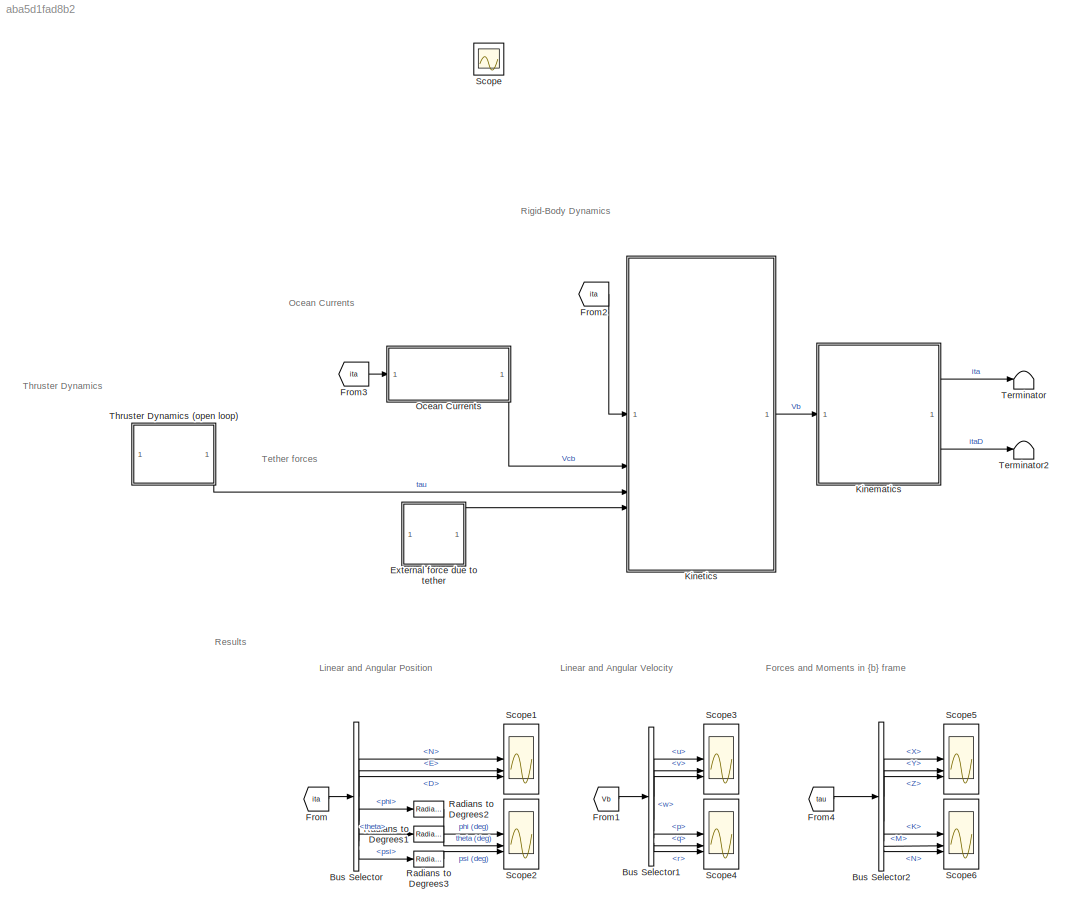
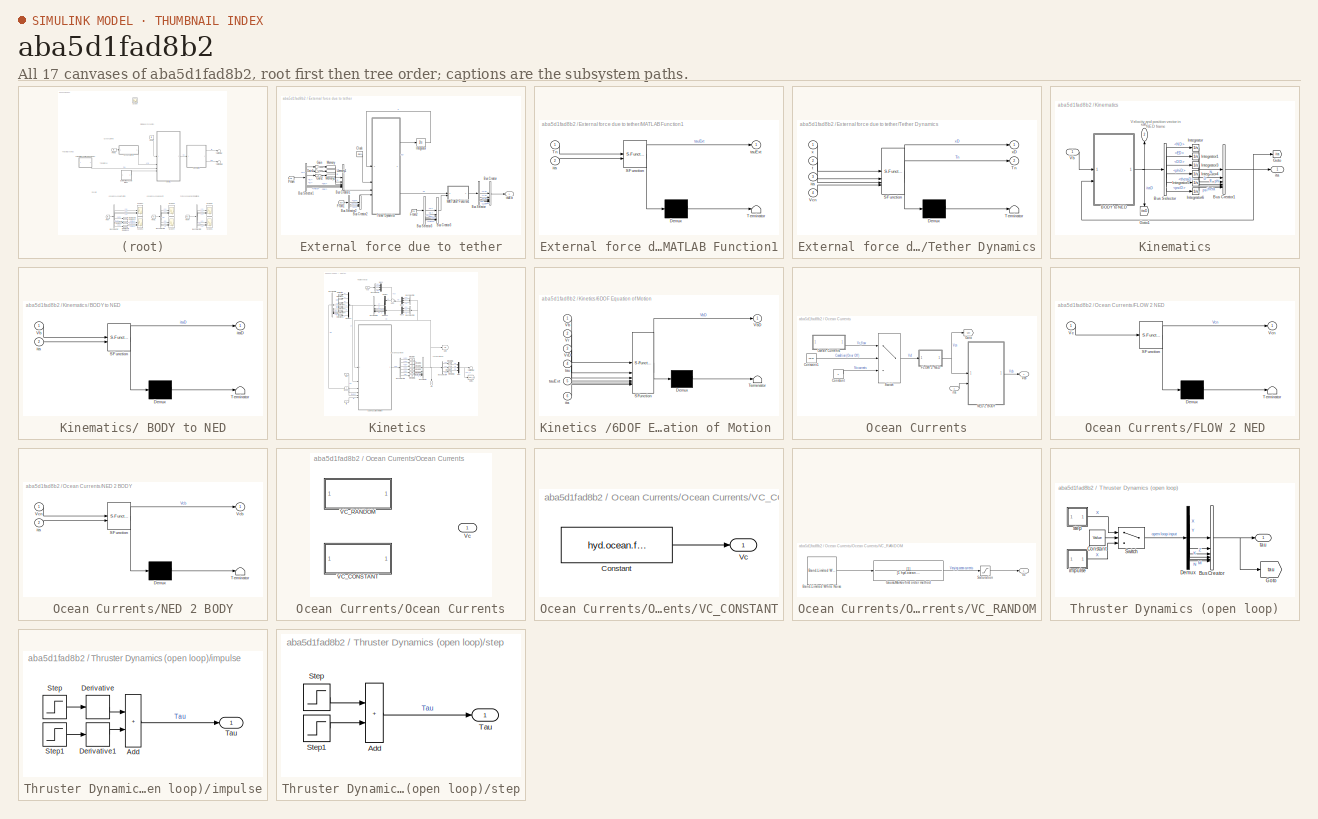
[diagram: thumbnail index - all 17 canvases of the model, root first then tree order]
MODEL slx_aba5d1fad8b2
KIND model
CONFIG AbsTol = auto
CONFIG EnableMultiTasking = off
CONFIG FixedStep = 0.01
CONFIG MaxStep = 0.01
CONFIG MinStep = 0.0001
CONFIG RelTol = 1e-3
CONFIG SampleTimeConstraint = Unconstrained
CONFIG SolverName = ode15s
CONFIG StartTime = 0.0
CONFIG StopTime = Sim.ts
BLOCK [BusSelector] Bus Selector
  OutputSignals = N,E,D,phi,theta,psi
BLOCK [BusSelector] Bus Selector1
  OutputSignals = u,v,w,p,q,r
BLOCK [BusSelector] Bus Selector2
  OutputSignals = X,Y,Z,K,M,N
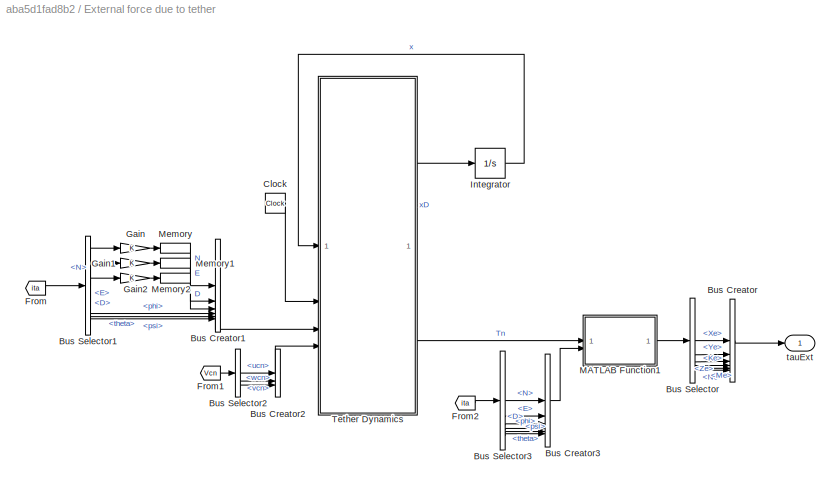
BLOCK [SubSystem] External force due to tether
BLOCK [BusCreator] External force due to tether/Bus Creator
  DisplayOption = bar
  InheritFromInputs = on
  Inputs = 6
  OutDataTypeStr = Bus: tauExt
BLOCK [BusCreator] External force due to tether/Bus Creator1
  DisplayOption = bar
  InheritFromInputs = on
  Inputs = 6
  OutDataTypeStr = Bus: ita
BLOCK [BusCreator] External force due to tether/Bus Creator2
  DisplayOption = bar
  InheritFromInputs = on
  Inputs = 3
  OutDataTypeStr = Bus: Vcn
BLOCK [BusCreator] External force due to tether/Bus Creator3
  DisplayOption = bar
  InheritFromInputs = on
  Inputs = 6
  OutDataTypeStr = Bus: ita
BLOCK [BusSelector] External force due to tether/Bus Selector
  OutputSignals = Xe,Ye,Ze,Ke,Me,Ne
BLOCK [BusSelector] External force due to tether/Bus Selector1
  OutputSignals = N,E,D,phi,theta,psi
BLOCK [BusSelector] External force due to tether/Bus Selector2
  OutputSignals = ucn,vcn,wcn
BLOCK [BusSelector] External force due to tether/Bus Selector3
  OutputSignals = N,E,D,phi,theta,psi
BLOCK [Clock] External force due to tether/Clock
BLOCK [From] External force due to tether/From
  GotoTag = ita
  TagVisibility = global
BLOCK [From] External force due to tether/From1
  GotoTag = Vcn
  TagVisibility = global
BLOCK [From] External force due to tether/From2
  GotoTag = ita
  TagVisibility = global
BLOCK [Gain] External force due to tether/Gain
BLOCK [Gain] External force due to tether/Gain1
BLOCK [Gain] External force due to tether/Gain2
BLOCK [Integrator] External force due to tether/Integrator
  InitialCondition = ics.tether.xstate
BLOCK [SubSystem] External force due to tether/MATLAB Function1
  ErrorFcn = Stateflow.Translate.translate
  LibrarySourceBlock = simulink/User-Defined\nFunctions/MATLAB Function
  PermitHierarchicalResolution = ExplicitOnly
  SFBlockType = MATLAB Function
  TreatAsAtomicUnit = on
BLOCK [Demux] External force due to tether/MATLAB Function1/ Demux 
  Outputs = 1
BLOCK [S-Function] External force due to tether/MATLAB Function1/ SFunction 
  EnableBusSupport = on
  FunctionName = sf_sfun
  PortCounts = [2 2]
  SFcnIsStateOwnerBlock = off
  SFunctionDeploymentMode = off
  Tag = Stateflow S-Function 6
BLOCK [Terminator] External force due to tether/MATLAB Function1/ Terminator 
BLOCK [Inport] External force due to tether/MATLAB Function1/Tn
BLOCK [Inport] External force due to tether/MATLAB Function1/ita
  Port = 2
BLOCK [Outport] External force due to tether/MATLAB Function1/tauExt
BLOCK [Memory] External force due to tether/Memory
  InitialCondition = ics.ita.N
BLOCK [Memory] External force due to tether/Memory1
  InitialCondition = ics.ita.E
BLOCK [Memory] External force due to tether/Memory2
  InitialCondition = ics.ita.D
BLOCK [SubSystem] External force due to tether/Tether Dynamics
  ErrorFcn = Stateflow.Translate.translate
  LibrarySourceBlock = simulink/User-Defined\nFunctions/MATLAB Function
  PermitHierarchicalResolution = ExplicitOnly
  SFBlockType = MATLAB Function
  TreatAsAtomicUnit = on
BLOCK [Demux] External force due to tether/Tether Dynamics/ Demux 
  Outputs = 1
BLOCK [S-Function] External force due to tether/Tether Dynamics/ SFunction 
  EnableBusSupport = on
  FunctionName = sf_sfun
  Parameters = ext,phy
  PortCounts = [4 3]
  SFcnIsStateOwnerBlock = off
  SFunctionDeploymentMode = off
  Tag = Stateflow S-Function 5
BLOCK [Terminator] External force due to tether/Tether Dynamics/ Terminator 
BLOCK [Outport] External force due to tether/Tether Dynamics/Tn
  Port = 2
BLOCK [Inport] External force due to tether/Tether Dynamics/Vcn
  Port = 4
BLOCK [Inport] External force due to tether/Tether Dynamics/ita
  Port = 3
BLOCK [Inport] External force due to tether/Tether Dynamics/t
  Port = 2
BLOCK [Inport] External force due to tether/Tether Dynamics/x
BLOCK [Outport] External force due to tether/Tether Dynamics/xD
BLOCK [Outport] External force due to tether/tauExt
  OutDataTypeStr = Bus: tauExt
BLOCK [From] From
  GotoTag = ita
  TagVisibility = global
BLOCK [From] From1
  GotoTag = Vb
  TagVisibility = global
BLOCK [From] From2
  GotoTag = ita
  TagVisibility = global
BLOCK [From] From3
  GotoTag = ita
  TagVisibility = global
BLOCK [From] From4
  GotoTag = tau
  TagVisibility = global
BLOCK [SubSystem] Kinematics
BLOCK [SubSystem] Kinematics/ BODY to NED
  ErrorFcn = Stateflow.Translate.translate
  LibrarySourceBlock = simulink/User-Defined\nFunctions/MATLAB Function
  PermitHierarchicalResolution = ExplicitOnly
  SFBlockType = MATLAB Function
  TreatAsAtomicUnit = on
BLOCK [Demux] Kinematics/ BODY to NED/ Demux 
  Outputs = 1
BLOCK [S-Function] Kinematics/ BODY to NED/ SFunction 
  EnableBusSupport = on
  FunctionName = sf_sfun
  PortCounts = [2 2]
  SFcnIsStateOwnerBlock = off
  SFunctionDeploymentMode = off
  Tag = Stateflow S-Function 1
BLOCK [Terminator] Kinematics/ BODY to NED/ Terminator 
BLOCK [Inport] Kinematics/ BODY to NED/Vb
BLOCK [Inport] Kinematics/ BODY to NED/ita
  Port = 2
BLOCK [Outport] Kinematics/ BODY to NED/itaD
BLOCK [BusCreator] Kinematics/Bus Creator1
  DisplayOption = bar
  InheritFromInputs = on
  Inputs = 6
  OutDataTypeStr = Bus: ita
BLOCK [BusSelector] Kinematics/Bus Selector
  OutputSignals = ND,ED,DD,phiD,thetaD,psiD
BLOCK [Goto] Kinematics/Goto
  GotoTag = ita
  TagVisibility = global
BLOCK [Goto] Kinematics/Goto1
  GotoTag = itaD
  NameLocation = left
  TagVisibility = global
BLOCK [Integrator] Kinematics/Integrator
  InitialCondition = North
  LowerSaturationLimit = ics.N
BLOCK [Integrator] Kinematics/Integrator1
  InitialCondition = East
  LowerSaturationLimit = ics.E
BLOCK [Integrator] Kinematics/Integrator3
  InitialCondition = Down
  LowerSaturationLimit = ics.D
BLOCK [Integrator] Kinematics/Integrator4
  InitialCondition = Roll
  LowerSaturationLimit = ics.phi
BLOCK [Integrator] Kinematics/Integrator5
  InitialCondition = Pitch
  LowerSaturationLimit = ics.theta
BLOCK [Integrator] Kinematics/Integrator6
  InitialCondition = InitialCondition
  LowerSaturationLimit = ics.psi
BLOCK [Inport] Kinematics/Vb
  OutDataTypeStr = Bus: Vb
BLOCK [Outport] Kinematics/ita
  OutDataTypeStr = Bus: ita
BLOCK [Outport] Kinematics/itaD
  NameLocation = top
  OutDataTypeStr = Bus: itaD
  Port = 2
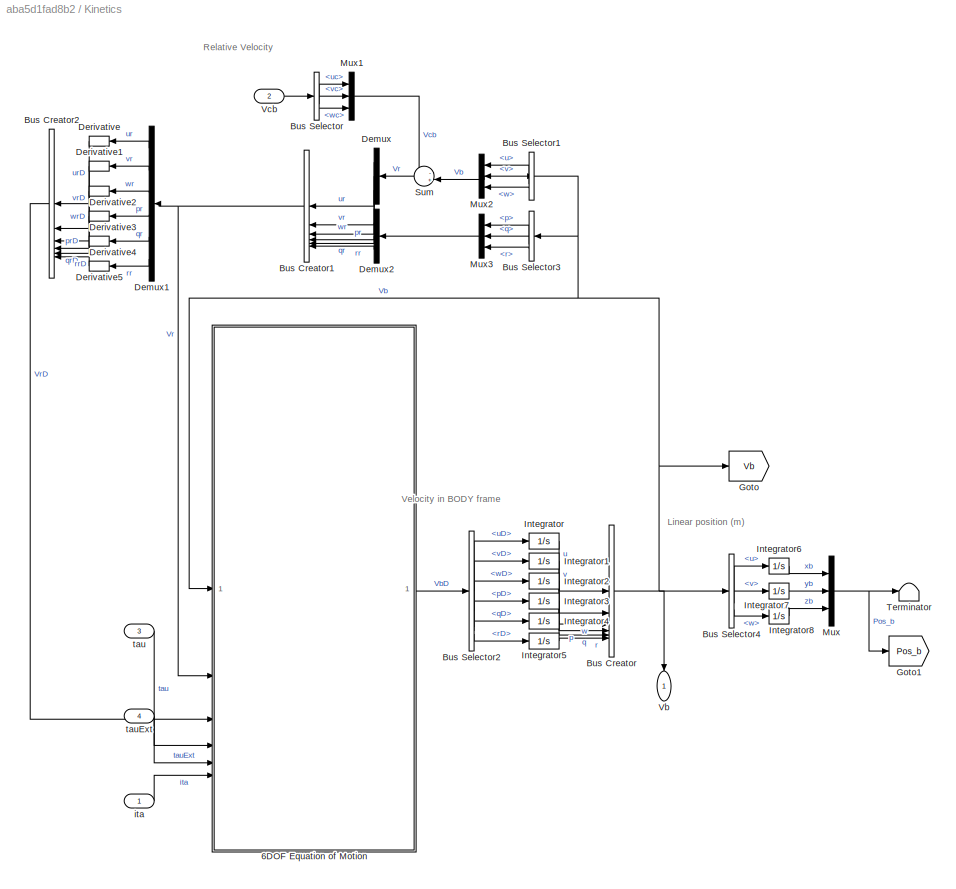
BLOCK [SubSystem] Kinetics 
BLOCK [SubSystem] Kinetics /6DOF Equation of Motion 
  ErrorFcn = Stateflow.Translate.translate
  LibrarySourceBlock = simulink/User-Defined\nFunctions/MATLAB Function
  PermitHierarchicalResolution = ExplicitOnly
  SFBlockType = MATLAB Function
  TreatAsAtomicUnit = on
BLOCK [Demux] Kinetics /6DOF Equation of Motion / Demux 
  Outputs = 1
BLOCK [S-Function] Kinetics /6DOF Equation of Motion / SFunction 
  EnableBusSupport = on
  FunctionName = sf_sfun
  Parameters = hyd,phy,rb
  PortCounts = [6 2]
  SFcnIsStateOwnerBlock = off
  SFunctionDeploymentMode = off
  Tag = Stateflow S-Function 3
BLOCK [Terminator] Kinetics /6DOF Equation of Motion / Terminator 
BLOCK [Inport] Kinetics /6DOF Equation of Motion /Vb
BLOCK [Outport] Kinetics /6DOF Equation of Motion /VbD
BLOCK [Inport] Kinetics /6DOF Equation of Motion /Vr
  Port = 2
BLOCK [Inport] Kinetics /6DOF Equation of Motion /VrD
  Port = 3
BLOCK [Inport] Kinetics /6DOF Equation of Motion /ita
  Port = 6
BLOCK [Inport] Kinetics /6DOF Equation of Motion /tau
  Port = 4
BLOCK [Inport] Kinetics /6DOF Equation of Motion /tauExt
  Port = 5
BLOCK [BusCreator] Kinetics /Bus Creator
  DisplayOption = bar
  InheritFromInputs = on
  Inputs = 6
  OutDataTypeStr = Bus: Vb
BLOCK [BusCreator] Kinetics /Bus Creator1
  DisplayOption = bar
  InheritFromInputs = on
  Inputs = 6
  NameLocation = top
  OutDataTypeStr = Bus: Vr
BLOCK [BusCreator] Kinetics /Bus Creator2
  DisplayOption = bar
  InheritFromInputs = on
  Inputs = 6
  NameLocation = top
  OutDataTypeStr = Bus: VrD
BLOCK [BusSelector] Kinetics /Bus Selector
  OutputSignals = uc,vc,wc
BLOCK [BusSelector] Kinetics /Bus Selector1
  NameLocation = top
  OutputSignals = u,v,w
BLOCK [BusSelector] Kinetics /Bus Selector2
  OutputSignals = uD,vD,wD,pD,qD,rD
BLOCK [BusSelector] Kinetics /Bus Selector3
  NameLocation = top
  OutputSignals = p,q,r
BLOCK [BusSelector] Kinetics /Bus Selector4
  OutputSignals = u,v,w
BLOCK [Demux] Kinetics /Demux
  NameLocation = top
  Outputs = 3
BLOCK [Demux] Kinetics /Demux1
  NameLocation = top
  Outputs = 6
BLOCK [Demux] Kinetics /Demux2
  NameLocation = top
  Outputs = 3
BLOCK [Derivative] Kinetics /Derivative
  NameLocation = top
BLOCK [Derivative] Kinetics /Derivative1
  NameLocation = top
BLOCK [Derivative] Kinetics /Derivative2
  NameLocation = top
BLOCK [Derivative] Kinetics /Derivative3
  NameLocation = top
BLOCK [Derivative] Kinetics /Derivative4
  NameLocation = top
BLOCK [Derivative] Kinetics /Derivative5
  NameLocation = top
BLOCK [Goto] Kinetics /Goto
  GotoTag = Vb
  TagVisibility = global
BLOCK [Goto] Kinetics /Goto1
  GotoTag = Pos_b
  TagVisibility = global
BLOCK [Integrator] Kinetics /Integrator
  InitialCondition = u_b
  LowerSaturationLimit = 0
  UpperSaturationLimit = ics.sat.umax
BLOCK [Integrator] Kinetics /Integrator1
  InitialCondition = v_b
  LowerSaturationLimit = 0
  UpperSaturationLimit = ics.sat.vmax
BLOCK [Integrator] Kinetics /Integrator2
  InitialCondition = w_b
  LowerSaturationLimit = 0
  UpperSaturationLimit = ics.sat.wmax
BLOCK [Integrator] Kinetics /Integrator3
  InitialCondition = p_b
  LowerSaturationLimit = 0
  UpperSaturationLimit = ics.sat.pmax
BLOCK [Integrator] Kinetics /Integrator4
  InitialCondition = q_b
  LowerSaturationLimit = 0
  UpperSaturationLimit = ics.sat.qmax
BLOCK [Integrator] Kinetics /Integrator5
  InitialCondition = r_b
  LowerSaturationLimit = 0
  UpperSaturationLimit = ics.sat.rmax
BLOCK [Integrator] Kinetics /Integrator6
  LowerSaturationLimit = 0
BLOCK [Integrator] Kinetics /Integrator7
  LowerSaturationLimit = 0
BLOCK [Integrator] Kinetics /Integrator8
  LowerSaturationLimit = 0
BLOCK [Mux] Kinetics /Mux
  DisplayOption = bar
  Inputs = 3
BLOCK [Mux] Kinetics /Mux1
  DisplayOption = bar
  Inputs = 3
BLOCK [Mux] Kinetics /Mux2
  DisplayOption = bar
  Inputs = 3
  NameLocation = top
BLOCK [Mux] Kinetics /Mux3
  DisplayOption = bar
  Inputs = 3
  NameLocation = top
BLOCK [Sum] Kinetics /Sum
  Inputs = -+|
  NameLocation = top
BLOCK [Terminator] Kinetics /Terminator
BLOCK [Outport] Kinetics /Vb
  NameLocation = left
  OutDataTypeStr = Bus: Vb
BLOCK [Inport] Kinetics /Vcb
  OutDataTypeStr = Bus: Vcb
  Port = 2
BLOCK [Inport] Kinetics /ita
  OutDataTypeStr = Bus: ita
BLOCK [Inport] Kinetics /tau
  OutDataTypeStr = Bus: tau
  Port = 3
BLOCK [Inport] Kinetics /tauExt
  OutDataTypeStr = Bus: tauExt
  Port = 4
BLOCK [SubSystem] Ocean Currents
BLOCK [Constant] Ocean Currents/Constant
  Value = 0
BLOCK [Constant] Ocean Currents/Constant1
  Value = Value
BLOCK [SubSystem] Ocean Currents/FLOW 2 NED
  ErrorFcn = Stateflow.Translate.translate
  LibrarySourceBlock = simulink/User-Defined\nFunctions/MATLAB Function
  PermitHierarchicalResolution = ExplicitOnly
  SFBlockType = MATLAB Function
  TreatAsAtomicUnit = on
BLOCK [Demux] Ocean Currents/FLOW 2 NED/ Demux 
  Outputs = 1
BLOCK [S-Function] Ocean Currents/FLOW 2 NED/ SFunction 
  EnableBusSupport = on
  FunctionName = sf_sfun
  Parameters = hyd
  PortCounts = [1 2]
  SFcnIsStateOwnerBlock = off
  SFunctionDeploymentMode = off
  Tag = Stateflow S-Function 2
BLOCK [Terminator] Ocean Currents/FLOW 2 NED/ Terminator 
BLOCK [Inport] Ocean Currents/FLOW 2 NED/Vc
BLOCK [Outport] Ocean Currents/FLOW 2 NED/Vcn
BLOCK [Goto] Ocean Currents/Goto
  GotoTag = Vcn
  TagVisibility = global
BLOCK [SubSystem] Ocean Currents/NED 2 BODY
  ErrorFcn = Stateflow.Translate.translate
  LibrarySourceBlock = simulink/User-Defined\nFunctions/MATLAB Function
  PermitHierarchicalResolution = ExplicitOnly
  SFBlockType = MATLAB Function
  TreatAsAtomicUnit = on
BLOCK [Demux] Ocean Currents/NED 2 BODY/ Demux 
  Outputs = 1
BLOCK [S-Function] Ocean Currents/NED 2 BODY/ SFunction 
  EnableBusSupport = on
  FunctionName = sf_sfun
  PortCounts = [2 2]
  SFcnIsStateOwnerBlock = off
  SFunctionDeploymentMode = off
  Tag = Stateflow S-Function 4
BLOCK [Terminator] Ocean Currents/NED 2 BODY/ Terminator 
BLOCK [Outport] Ocean Currents/NED 2 BODY/Vcb
BLOCK [Inport] Ocean Currents/NED 2 BODY/Vcn
BLOCK [Inport] Ocean Currents/NED 2 BODY/ita
  Port = 2
BLOCK [SubSystem] Ocean Currents/Ocean Currents
  Variant = on
BLOCK [SubSystem] Ocean Currents/Ocean Currents/VC_CONSTANT
  VariantControl = VC_CONSTANT
BLOCK [Constant] Ocean Currents/Ocean Currents/VC_CONSTANT/Constant
  Value = hyd.ocean.flow.constant
BLOCK [Outport] Ocean Currents/Ocean Currents/VC_CONSTANT/Vc
BLOCK [SubSystem] Ocean Currents/Ocean Currents/VC_RANDOM
  VariantControl = VC_RANDOM
BLOCK [Reference] Ocean Currents/Ocean Currents/VC_RANDOM/Band-Limited White Noise  REF=simulink/Sources/Band-Limited
White Noise
  SourceBlock = simulink/Sources/Band-Limited\nWhite Noise
  SourceType = Band-Limited White Noise.
BLOCK [TransferFcn] Ocean Currents/Ocean Currents/VC_RANDOM/Gauss-Markov first order method
  Denominator = [1 hyd.ocean.flow.varying.mu]
BLOCK [Saturate] Ocean Currents/Ocean Currents/VC_RANDOM/Saturation
  LowerLimit = hyd.ocean.flow.varying.Vmin
  UpperLimit = hyd.ocean.flow.varying.Vmax
BLOCK [Outport] Ocean Currents/Ocean Currents/VC_RANDOM/Vc
BLOCK [Outport] Ocean Currents/Ocean Currents/Vc
BLOCK [Switch] Ocean Currents/Switch
  Criteria = u2 > Threshold
  InputSameDT = off
  SaturateOnIntegerOverflow = off
BLOCK [Outport] Ocean Currents/Vcb
  OutDataTypeStr = Bus: Vcb
BLOCK [Inport] Ocean Currents/ita
  OutDataTypeStr = Bus: ita
BLOCK [Reference] Radians to Degrees1  REF=simulink_extras/Transformations/Radians
to Degrees
  SourceBlock = simulink_extras/Transformations/Radians\nto Degrees
  SourceType = RadiansToDegrees
BLOCK [Reference] Radians to Degrees2  REF=simulink_extras/Transformations/Radians
to Degrees
  SourceBlock = simulink_extras/Transformations/Radians\nto Degrees
  SourceType = RadiansToDegrees
BLOCK [Reference] Radians to Degrees3  REF=simulink_extras/Transformations/Radians
to Degrees
  SourceBlock = simulink_extras/Transformations/Radians\nto Degrees
  SourceType = RadiansToDegrees
BLOCK [Scope] Scope
  Floating = off
  IOType = viewer
  NumInputPorts = 1
  ScopeSpecificationString = Simulink.scopes.TimeScopeBlockCfg('CurrentConfiguration', extmgr.ConfigurationSet(extmgr.Configuration('Core','General UI',true),extmgr.Configuration('Core','Source UI',true),extmgr.Configuration('Sources','WiredSimulink',true),extmgr.Configuration('Visuals','Time Domain',true,'SerializedDisplays',{struct('MinYLimReal','-10.00000','MaxYLimReal','10.00000','YLabelReal','','MinYLimMag','0.00000','Ma...<+1368ch>
BLOCK [Scope] Scope1
  Floating = off
  NumInputPorts = 3
  ScopeSpecificationString = Simulink.scopes.TimeScopeBlockCfg('CurrentConfiguration', extmgr.ConfigurationSet(extmgr.Configuration('Core','General UI',true),extmgr.Configuration('Core','Source UI',true),extmgr.Configuration('Sources','WiredSimulink',true,'DataLoggingVariableName','ScopeData1'),extmgr.Configuration('Visuals','Time Domain',true,'SerializedDisplays',{struct('MinYLimReal','-3.125','MaxYLimReal','28.125','YLabelR...<+1656ch>
BLOCK [Scope] Scope2
  Floating = off
  NumInputPorts = 3
  ScopeSpecificationString = Simulink.scopes.TimeScopeBlockCfg('CurrentConfiguration', extmgr.ConfigurationSet(extmgr.Configuration('Core','General UI',true),extmgr.Configuration('Core','Source UI',true),extmgr.Configuration('Sources','WiredSimulink',true,'DataLoggingVariableName','ScopeData2'),extmgr.Configuration('Visuals','Time Domain',true,'SerializedDisplays',{struct('MinYLimReal','-1.00000','MaxYLimReal','1.00000','YLab...<+1618ch>
BLOCK [Scope] Scope3
  Floating = off
  NumInputPorts = 3
  ScopeSpecificationString = Simulink.scopes.TimeScopeBlockCfg('CurrentConfiguration', extmgr.ConfigurationSet(extmgr.Configuration('Core','General UI',true),extmgr.Configuration('Core','Source UI',true),extmgr.Configuration('Sources','WiredSimulink',true,'DataLoggingVariableName','ScopeData3'),extmgr.Configuration('Visuals','Time Domain',true,'SerializedDisplays',{struct('MinYLimReal','-1.00000','MaxYLimReal','1.00000','YLab...<+1584ch>
BLOCK [Scope] Scope4
  Floating = off
  NumInputPorts = 3
  ScopeSpecificationString = Simulink.scopes.TimeScopeBlockCfg('CurrentConfiguration', extmgr.ConfigurationSet(extmgr.Configuration('Core','General UI',true),extmgr.Configuration('Core','Source UI',true),extmgr.Configuration('Sources','WiredSimulink',true,'DataLoggingVariableName','ScopeData4'),extmgr.Configuration('Visuals','Time Domain',true,'SerializedDisplays',{struct('MinYLimReal','-1.00000','MaxYLimReal','1.00000','YLab...<+1506ch>
BLOCK [Scope] Scope5
  Floating = off
  NumInputPorts = 3
  ScopeSpecificationString = Simulink.scopes.TimeScopeBlockCfg('CurrentConfiguration', extmgr.ConfigurationSet(extmgr.Configuration('Core','General UI',true),extmgr.Configuration('Core','Source UI',true),extmgr.Configuration('Sources','WiredSimulink',true,'DataLoggingVariableName','ScopeData1'),extmgr.Configuration('Visuals','Time Domain',true,'SerializedDisplays',{struct('MinYLimReal','-1.00000','MaxYLimReal','1.00000','YLab...<+1577ch>
BLOCK [Scope] Scope6
  Floating = off
  NumInputPorts = 3
  ScopeSpecificationString = Simulink.scopes.TimeScopeBlockCfg('CurrentConfiguration', extmgr.ConfigurationSet(extmgr.Configuration('Core','General UI',true),extmgr.Configuration('Core','Source UI',true),extmgr.Configuration('Sources','WiredSimulink',true,'DataLoggingVariableName','ScopeData2'),extmgr.Configuration('Visuals','Time Domain',true,'SerializedDisplays',{struct('MinYLimReal','-1.00000','MaxYLimReal','1.00000','YLab...<+1569ch>
BLOCK [Terminator] Terminator
BLOCK [Terminator] Terminator2
BLOCK [SubSystem] Thruster Dynamics (open loop)
BLOCK [BusCreator] Thruster Dynamics (open loop)/Bus Creator
  DisplayOption = bar
  InheritFromInputs = on
  Inputs = 6
  OutDataTypeStr = Bus: tau
BLOCK [Constant] Thruster Dynamics (open loop)/Constant
  Value = Value
BLOCK [Demux] Thruster Dynamics (open loop)/Demux
  Outputs = 6
BLOCK [Goto] Thruster Dynamics (open loop)/Goto
  GotoTag = tau
  TagVisibility = global
BLOCK [Switch] Thruster Dynamics (open loop)/Switch
  Criteria = u2 > Threshold
  InputSameDT = off
  SaturateOnIntegerOverflow = off
BLOCK [SubSystem] Thruster Dynamics (open loop)/impulse
BLOCK [Sum] Thruster Dynamics (open loop)/impulse/Add
  IconShape = rectangular
BLOCK [Derivative] Thruster Dynamics (open loop)/impulse/Derivative
BLOCK [Derivative] Thruster Dynamics (open loop)/impulse/Derivative1
BLOCK [Step] Thruster Dynamics (open loop)/impulse/Step
  After = -thrust.control.Tau+thrust.control.Tau
  Before = -thrust.control.Tau
  SampleTime = 0
  Time = thrust.start
BLOCK [Step] Thruster Dynamics (open loop)/impulse/Step1
  After = 0
  Before = thrust.control.Tau
  SampleTime = 0
  Time = thrust.start + thrust.duration
BLOCK [Outport] Thruster Dynamics (open loop)/impulse/Tau
BLOCK [SubSystem] Thruster Dynamics (open loop)/step
BLOCK [Sum] Thruster Dynamics (open loop)/step/Add
  IconShape = rectangular
BLOCK [Step] Thruster Dynamics (open loop)/step/Step
  After = -thrust.control.Tau+thrust.control.Tau
  Before = -thrust.control.Tau
  SampleTime = 0
  Time = thrust.start
BLOCK [Step] Thruster Dynamics (open loop)/step/Step1
  After = 0
  Before = thrust.control.Tau
  SampleTime = 0
  Time = thrust.duration+thrust.start
BLOCK [Outport] Thruster Dynamics (open loop)/step/Tau
BLOCK [Outport] Thruster Dynamics (open loop)/tau
  OutDataTypeStr = Bus: tau
ANNOTATION (root): Forces and Moments in {b} frame
ANNOTATION (root): Linear and Angular Position
ANNOTATION (root): Linear and Angular Velocity
ANNOTATION (root): Ocean Currents
ANNOTATION (root): Results
ANNOTATION (root): Rigid-Body Dynamics
ANNOTATION (root): Tether forces
ANNOTATION (root): Thruster Dynamics
ANNOTATION Kinematics: Velocity and position vector in NED frame
ANNOTATION Kinetics : Linear position (m)
ANNOTATION Kinetics : Relative Velocity
ANNOTATION Kinetics : Velocity in BODY frame
LINE Bus Selector1:1 -> Scope3:1
LINE Bus Selector1:2 -> Scope3:2
LINE Bus Selector1:3 -> Scope3:3
LINE Bus Selector1:4 -> Scope4:1
LINE Bus Selector1:5 -> Scope4:2
LINE Bus Selector1:6 -> Scope4:3
LINE Bus Selector2:1 -> Scope5:1
LINE Bus Selector2:2 -> Scope5:2
LINE Bus Selector2:3 -> Scope5:3
LINE Bus Selector2:4 -> Scope6:1
LINE Bus Selector2:5 -> Scope6:2
LINE Bus Selector2:6 -> Scope6:3
LINE Bus Selector:1 -> Scope1:1
LINE Bus Selector:2 -> Scope1:2
LINE Bus Selector:3 -> Scope1:3
LINE Bus Selector:4 -> Radians to Degrees2:1
LINE Bus Selector:5 -> Radians to Degrees1:1
LINE Bus Selector:6 -> Radians to Degrees3:1
LINE External force due to tether/Bus Creator1:1 -> External force due to tether/Tether Dynamics:3
LINE External force due to tether/Bus Creator2:1 -> External force due to tether/Tether Dynamics:4
LINE External force due to tether/Bus Creator3:1 -> External force due to tether/MATLAB Function1:2
LINE External force due to tether/Bus Creator:1 -> External force due to tether/tauExt:1
LINE External force due to tether/Bus Selector1:1 -> External force due to tether/Gain:1
LINE External force due to tether/Bus Selector1:2 -> External force due to tether/Gain1:1
LINE External force due to tether/Bus Selector1:3 -> External force due to tether/Gain2:1
LINE External force due to tether/Bus Selector1:4 -> External force due to tether/Bus Creator1:4
LINE External force due to tether/Bus Selector1:5 -> External force due to tether/Bus Creator1:5
LINE External force due to tether/Bus Selector1:6 -> External force due to tether/Bus Creator1:6
LINE External force due to tether/Bus Selector2:1 -> External force due to tether/Bus Creator2:1
LINE External force due to tether/Bus Selector2:2 -> External force due to tether/Bus Creator2:2
LINE External force due to tether/Bus Selector2:3 -> External force due to tether/Bus Creator2:3
LINE External force due to tether/Bus Selector3:1 -> External force due to tether/Bus Creator3:1
LINE External force due to tether/Bus Selector3:2 -> External force due to tether/Bus Creator3:2
LINE External force due to tether/Bus Selector3:3 -> External force due to tether/Bus Creator3:3
LINE External force due to tether/Bus Selector3:4 -> External force due to tether/Bus Creator3:4
LINE External force due to tether/Bus Selector3:5 -> External force due to tether/Bus Creator3:5
LINE External force due to tether/Bus Selector3:6 -> External force due to tether/Bus Creator3:6
LINE External force due to tether/Bus Selector:1 -> External force due to tether/Bus Creator:1
LINE External force due to tether/Bus Selector:2 -> External force due to tether/Bus Creator:2
LINE External force due to tether/Bus Selector:3 -> External force due to tether/Bus Creator:3
LINE External force due to tether/Bus Selector:4 -> External force due to tether/Bus Creator:4
LINE External force due to tether/Bus Selector:5 -> External force due to tether/Bus Creator:5
LINE External force due to tether/Bus Selector:6 -> External force due to tether/Bus Creator:6
LINE External force due to tether/Clock:1 -> External force due to tether/Tether Dynamics:2
LINE External force due to tether/From1:1 -> External force due to tether/Bus Selector2:1
LINE External force due to tether/From2:1 -> External force due to tether/Bus Selector3:1
LINE External force due to tether/From:1 -> External force due to tether/Bus Selector1:1
LINE External force due to tether/Gain1:1 -> External force due to tether/Memory1:1
LINE External force due to tether/Gain2:1 -> External force due to tether/Memory2:1
LINE External force due to tether/Gain:1 -> External force due to tether/Memory:1
LINE External force due to tether/Integrator:1 -> External force due to tether/Tether Dynamics:1
LINE External force due to tether/MATLAB Function1:1 -> External force due to tether/Bus Selector:1
LINE External force due to tether/Memory1:1 -> External force due to tether/Bus Creator1:2
LINE External force due to tether/Memory2:1 -> External force due to tether/Bus Creator1:3
LINE External force due to tether/Memory:1 -> External force due to tether/Bus Creator1:1
LINE External force due to tether/Tether Dynamics:1 -> External force due to tether/Integrator:1
LINE External force due to tether/Tether Dynamics:2 -> External force due to tether/MATLAB Function1:1
LINE External force due to tether:1 -> Kinetics :4
LINE From1:1 -> Bus Selector1:1
LINE From2:1 -> Kinetics :1
LINE From3:1 -> Ocean Currents:1
LINE From4:1 -> Bus Selector2:1
LINE From:1 -> Bus Selector:1
NET Kinematics/ BODY to NED:1 -> Kinematics/Bus Selector:1, Kinematics/Goto1:1, Kinematics/itaD:1
NET Kinematics/Bus Creator1:1 -> Kinematics/ BODY to NED:2, Kinematics/Goto:1, Kinematics/ita:1
LINE Kinematics/Bus Selector:1 -> Kinematics/Integrator:1
LINE Kinematics/Bus Selector:2 -> Kinematics/Integrator1:1
LINE Kinematics/Bus Selector:3 -> Kinematics/Integrator3:1
LINE Kinematics/Bus Selector:4 -> Kinematics/Integrator4:1
LINE Kinematics/Bus Selector:5 -> Kinematics/Integrator5:1
LINE Kinematics/Bus Selector:6 -> Kinematics/Integrator6:1
LINE Kinematics/Integrator1:1 -> Kinematics/Bus Creator1:2
LINE Kinematics/Integrator3:1 -> Kinematics/Bus Creator1:3
LINE Kinematics/Integrator4:1 -> Kinematics/Bus Creator1:4
LINE Kinematics/Integrator5:1 -> Kinematics/Bus Creator1:5
LINE Kinematics/Integrator6:1 -> Kinematics/Bus Creator1:6
LINE Kinematics/Integrator:1 -> Kinematics/Bus Creator1:1
LINE Kinematics/Vb:1 -> Kinematics/ BODY to NED:1
LINE Kinematics:1 -> Terminator:1
LINE Kinematics:2 -> Terminator2:1
LINE Kinetics /6DOF Equation of Motion :1 -> Kinetics /Bus Selector2:1
NET Kinetics /Bus Creator1:1 -> Kinetics /6DOF Equation of Motion :2, Kinetics /Demux1:1
LINE Kinetics /Bus Creator2:1 -> Kinetics /6DOF Equation of Motion :3
NET Kinetics /Bus Creator:1 -> Kinetics /6DOF Equation of Motion :1, Kinetics /Bus Selector1:1, Kinetics /Bus Selector3:1, Kinetics /Bus Selector4:1, Kinetics /Goto:1, Kinetics /Vb:1
LINE Kinetics /Bus Selector1:1 -> Kinetics /Mux2:1
LINE Kinetics /Bus Selector1:2 -> Kinetics /Mux2:2
LINE Kinetics /Bus Selector1:3 -> Kinetics /Mux2:3
LINE Kinetics /Bus Selector2:1 -> Kinetics /Integrator:1
LINE Kinetics /Bus Selector2:2 -> Kinetics /Integrator1:1
LINE Kinetics /Bus Selector2:3 -> Kinetics /Integrator2:1
LINE Kinetics /Bus Selector2:4 -> Kinetics /Integrator3:1
LINE Kinetics /Bus Selector2:5 -> Kinetics /Integrator4:1
LINE Kinetics /Bus Selector2:6 -> Kinetics /Integrator5:1
LINE Kinetics /Bus Selector3:1 -> Kinetics /Mux3:1
LINE Kinetics /Bus Selector3:2 -> Kinetics /Mux3:2
LINE Kinetics /Bus Selector3:3 -> Kinetics /Mux3:3
LINE Kinetics /Bus Selector4:1 -> Kinetics /Integrator6:1
LINE Kinetics /Bus Selector4:2 -> Kinetics /Integrator7:1
LINE Kinetics /Bus Selector4:3 -> Kinetics /Integrator8:1
LINE Kinetics /Bus Selector:1 -> Kinetics /Mux1:1
LINE Kinetics /Bus Selector:2 -> Kinetics /Mux1:2
LINE Kinetics /Bus Selector:3 -> Kinetics /Mux1:3
LINE Kinetics /Demux1:1 -> Kinetics /Derivative:1
LINE Kinetics /Demux1:2 -> Kinetics /Derivative1:1
LINE Kinetics /Demux1:3 -> Kinetics /Derivative2:1
LINE Kinetics /Demux1:4 -> Kinetics /Derivative3:1
LINE Kinetics /Demux1:5 -> Kinetics /Derivative4:1
LINE Kinetics /Demux1:6 -> Kinetics /Derivative5:1
LINE Kinetics /Demux2:1 -> Kinetics /Bus Creator1:4
LINE Kinetics /Demux2:2 -> Kinetics /Bus Creator1:5
LINE Kinetics /Demux2:3 -> Kinetics /Bus Creator1:6
LINE Kinetics /Demux:1 -> Kinetics /Bus Creator1:1
LINE Kinetics /Demux:2 -> Kinetics /Bus Creator1:2
LINE Kinetics /Demux:3 -> Kinetics /Bus Creator1:3
LINE Kinetics /Derivative1:1 -> Kinetics /Bus Creator2:2
LINE Kinetics /Derivative2:1 -> Kinetics /Bus Creator2:3
LINE Kinetics /Derivative3:1 -> Kinetics /Bus Creator2:4
LINE Kinetics /Derivative4:1 -> Kinetics /Bus Creator2:5
LINE Kinetics /Derivative5:1 -> Kinetics /Bus Creator2:6
LINE Kinetics /Derivative:1 -> Kinetics /Bus Creator2:1
LINE Kinetics /Integrator1:1 -> Kinetics /Bus Creator:2
LINE Kinetics /Integrator2:1 -> Kinetics /Bus Creator:3
LINE Kinetics /Integrator3:1 -> Kinetics /Bus Creator:4
LINE Kinetics /Integrator4:1 -> Kinetics /Bus Creator:5
LINE Kinetics /Integrator5:1 -> Kinetics /Bus Creator:6
LINE Kinetics /Integrator6:1 -> Kinetics /Mux:1
LINE Kinetics /Integrator7:1 -> Kinetics /Mux:2
LINE Kinetics /Integrator8:1 -> Kinetics /Mux:3
LINE Kinetics /Integrator:1 -> Kinetics /Bus Creator:1
LINE Kinetics /Mux1:1 -> Kinetics /Sum:1
LINE Kinetics /Mux2:1 -> Kinetics /Sum:2
LINE Kinetics /Mux3:1 -> Kinetics /Demux2:1
NET Kinetics /Mux:1 -> Kinetics /Goto1:1, Kinetics /Terminator:1
LINE Kinetics /Sum:1 -> Kinetics /Demux:1
LINE Kinetics /Vcb:1 -> Kinetics /Bus Selector:1
LINE Kinetics /ita:1 -> Kinetics /6DOF Equation of Motion :6
LINE Kinetics /tau:1 -> Kinetics /6DOF Equation of Motion :4
LINE Kinetics /tauExt:1 -> Kinetics /6DOF Equation of Motion :5
LINE Kinetics :1 -> Kinematics:1
LINE Ocean Currents/Constant1:1 -> Ocean Currents/Switch:2
LINE Ocean Currents/Constant:1 -> Ocean Currents/Switch:3
NET Ocean Currents/FLOW 2 NED:1 -> Ocean Currents/Goto:1, Ocean Currents/NED 2 BODY:1
LINE Ocean Currents/NED 2 BODY:1 -> Ocean Currents/Vcb:1
LINE Ocean Currents/Ocean Currents/VC_CONSTANT/Constant:1 -> Ocean Currents/Ocean Currents/VC_CONSTANT/Vc:1
LINE Ocean Currents/Ocean Currents/VC_RANDOM/Band-Limited White Noise:1 -> Ocean Currents/Ocean Currents/VC_RANDOM/Gauss-Markov first order method:1
LINE Ocean Currents/Ocean Currents/VC_RANDOM/Gauss-Markov first order method:1 -> Ocean Currents/Ocean Currents/VC_RANDOM/Saturation:1
LINE Ocean Currents/Ocean Currents/VC_RANDOM/Saturation:1 -> Ocean Currents/Ocean Currents/VC_RANDOM/Vc:1
LINE Ocean Currents/Ocean Currents:1 -> Ocean Currents/Switch:1
LINE Ocean Currents/Switch:1 -> Ocean Currents/FLOW 2 NED:1
LINE Ocean Currents/ita:1 -> Ocean Currents/NED 2 BODY:2
LINE Ocean Currents:1 -> Kinetics :2
LINE Radians to Degrees1:1 -> Scope2:2
LINE Radians to Degrees2:1 -> Scope2:1
LINE Radians to Degrees3:1 -> Scope2:3
NET Thruster Dynamics (open loop)/Bus Creator:1 -> Thruster Dynamics (open loop)/Goto:1, Thruster Dynamics (open loop)/tau:1
LINE Thruster Dynamics (open loop)/Constant:1 -> Thruster Dynamics (open loop)/Switch:2
LINE Thruster Dynamics (open loop)/Demux:1 -> Thruster Dynamics (open loop)/Bus Creator:1
LINE Thruster Dynamics (open loop)/Demux:2 -> Thruster Dynamics (open loop)/Bus Creator:2
LINE Thruster Dynamics (open loop)/Demux:3 -> Thruster Dynamics (open loop)/Bus Creator:3
LINE Thruster Dynamics (open loop)/Demux:4 -> Thruster Dynamics (open loop)/Bus Creator:4
LINE Thruster Dynamics (open loop)/Demux:5 -> Thruster Dynamics (open loop)/Bus Creator:5
LINE Thruster Dynamics (open loop)/Demux:6 -> Thruster Dynamics (open loop)/Bus Creator:6
LINE Thruster Dynamics (open loop)/Switch:1 -> Thruster Dynamics (open loop)/Demux:1
LINE Thruster Dynamics (open loop)/impulse/Add:1 -> Thruster Dynamics (open loop)/impulse/Tau:1
LINE Thruster Dynamics (open loop)/impulse/Derivative1:1 -> Thruster Dynamics (open loop)/impulse/Add:2
LINE Thruster Dynamics (open loop)/impulse/Derivative:1 -> Thruster Dynamics (open loop)/impulse/Add:1
LINE Thruster Dynamics (open loop)/impulse/Step1:1 -> Thruster Dynamics (open loop)/impulse/Derivative1:1
LINE Thruster Dynamics (open loop)/impulse/Step:1 -> Thruster Dynamics (open loop)/impulse/Derivative:1
LINE Thruster Dynamics (open loop)/impulse:1 -> Thruster Dynamics (open loop)/Switch:3
LINE Thruster Dynamics (open loop)/step/Add:1 -> Thruster Dynamics (open loop)/step/Tau:1
LINE Thruster Dynamics (open loop)/step/Step1:1 -> Thruster Dynamics (open loop)/step/Add:2
LINE Thruster Dynamics (open loop)/step/Step:1 -> Thruster Dynamics (open loop)/step/Add:1
LINE Thruster Dynamics (open loop)/step:1 -> Thruster Dynamics (open loop)/Switch:1
LINE Thruster Dynamics (open loop):1 -> Kinetics :3
note: NET lines group one-source signal fan-out (src -> all destinations, sorted); 1:1 wires keep LINE
CHART Kinematics/ BODY to NED states=1 transitions=1
  STATE_LABEL 'eML_blk_kernel()'
  STATE_LABEL "SCRIPT:\nfunction itaD = Vn(Vb,ita)\n\nvb = [Vb.u,Vb.v,Vb.w,Vb.p,Vb.q,Vb.r]';\n\n% Euler angles\nphi = ita.phi;\ntheta = ita.theta;\npsi = ita.psi;\n\n% Rotational matrices (Linear & angular)\nRbn = rotbn(phi,theta,psi);\nTbn = tbn(phi,theta);\n\n% J is transformation matrix\nJ = [Rbn,zeros(3);zeros(3),Tbn];\n\n% if t>40\n%     a=3;\n% end\n\nz = J*vb;       % Transformation of velocity from {b} to {n} frame\n\n% Veloci...<+135ch>"
CHART Ocean Currents/FLOW 2 NED states=1 transitions=1
  STATE_LABEL 'eML_blk_kernel()'
  STATE_LABEL "SCRIPT:\nfunction Vcn = f2e(Vc,hyd)\n\nRfn = R_alpha(hyd)'*R_beta(hyd)';\n\nxx = Rfn * [Vc,0,0]';        % Velocity vector in {n} frame\n\n% Ocean current in NED / {n} frame\nVcn.ucn = xx(1);\nVcn.vcn = xx(2);\nVcn.wcn = xx(3);\n\n\n"
CHART Kinetics /6DOF Equation of Motion  states=1 transitions=1
  STATE_LABEL 'eML_blk_kernel()'
  STATE_LABEL "SCRIPT:\nfunction VbD = eomRB(Vb, Vr, VrD, tau, tauExt, ita, rb, hyd, phy)\n\n% Equation of motion or kinetic equation can be derived using Mrb (Mass\n% matrix), Crb (Coriolis-Centripetal force) and vb (velocity of vehicle in\n% body-fixed frame {b}\n% EOM is Mrb*vDot + Crb(vb)*vb = tau_RB       \n\n\nvb = [Vb.u,Vb.v,Vb.w,Vb.p,Vb.q,Vb.r]';\nvr = [Vr.ur,Vr.vr,Vr.wr,Vr.pr,Vr.qr,Vr.rr]';\nvrd = [VrD.urD, VrD.vr...<+508ch>"
CHART Ocean Currents/NED 2 BODY states=1 transitions=1
  STATE_LABEL 'eML_blk_kernel()'
  STATE_LABEL "SCRIPT:\nfunction Vcb = e2b(Vcn,ita)\n\n% Rotation matrix \nRbn = rotbn(ita.phi,ita.theta,ita.psi);\nx = [Vcn.ucn;Vcn.vcn;Vcn.wcn];\ntmp = Rbn' * x;       \n\n% Velocity of currents in {b} frame\nVcb.uc = tmp(1);\nVcb.vc = tmp(2);\nVcb.wc = tmp(3);"
CHART External force due to tether/Tether Dynamics states=1 transitions=1
  STATE_LABEL 'eML_blk_kernel()'
  STATE_LABEL 'SCRIPT:\nfunction [xD,Tn] = pDD(x,t,ita,Vcn, ext,phy)\n% Input by the user\n%%%%%%%%%%%%%%%%%%%%%%%%%%%%%%%%%%%%%%%%%%%%%%%%%%%%\nn = 9;         % no of nodes ---- (total nodes - 2)\n%%%%%%%%%%%%%%%%%%%%%%%%%%%%%%%%%%%%%%%%%%%%%%%%%%%%\n\n if t == 4\n    a = 3;\n end\nE = ext.tether.E;\nm = ext.tether.m;\nl0 = ext.tether.init.lu;\nrho = phy.rho;\nCint = ext.tether.Cint;\nCn = ext.tether.Cn;\nCt = ext.tether.Ct;\nd...<+3608ch>'
CHART External force due to tether/MATLAB Function1 states=1 transitions=1
  STATE_LABEL 'eML_blk_kernel()'
  STATE_LABEL "SCRIPT:\nfunction tauExt = fcn(Tn,ita)\n\nRbn = rotbn(ita.phi,ita.theta,ita.psi);\nTbn = tbn(ita.phi,ita.theta);\ny = [Rbn', zeros(3);zeros(3),Tbn']*[Tn;zeros(3,1)];\n\n% Tether forces and moments\ntauExt.Xe = y(1);\ntauExt.Ye = y(2);\ntauExt.Ze = y(3);\ntauExt.Ke = y(4);\ntauExt.Me = y(5);\ntauExt.Ne = y(6);\n"
CHART  states=0 transitions=0
CHART  states=0 transitions=0
CHART  states=0 transitions=0
CHART  states=0 transitions=0
CHART  states=0 transitions=0
CHART  states=0 transitions=0
